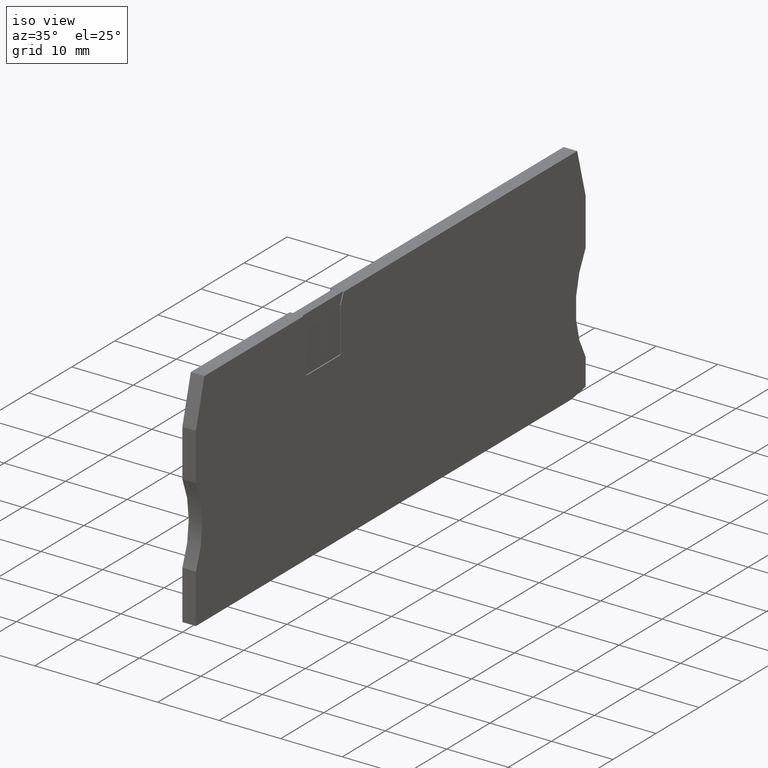
[diagram: clean part render]
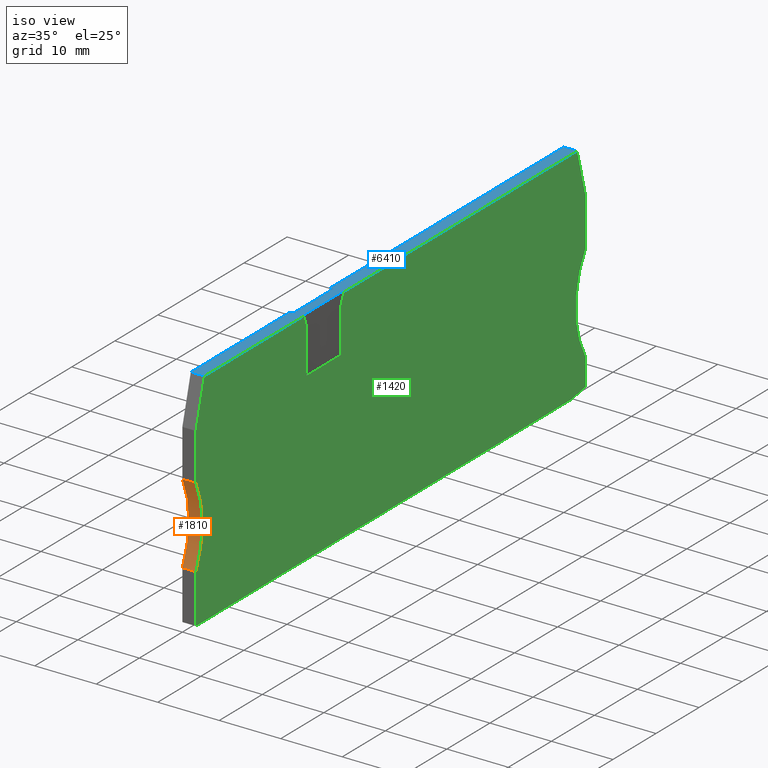
[diagram: same view with three faces highlighted in distinct colors, each labeled with its STEP entity id]
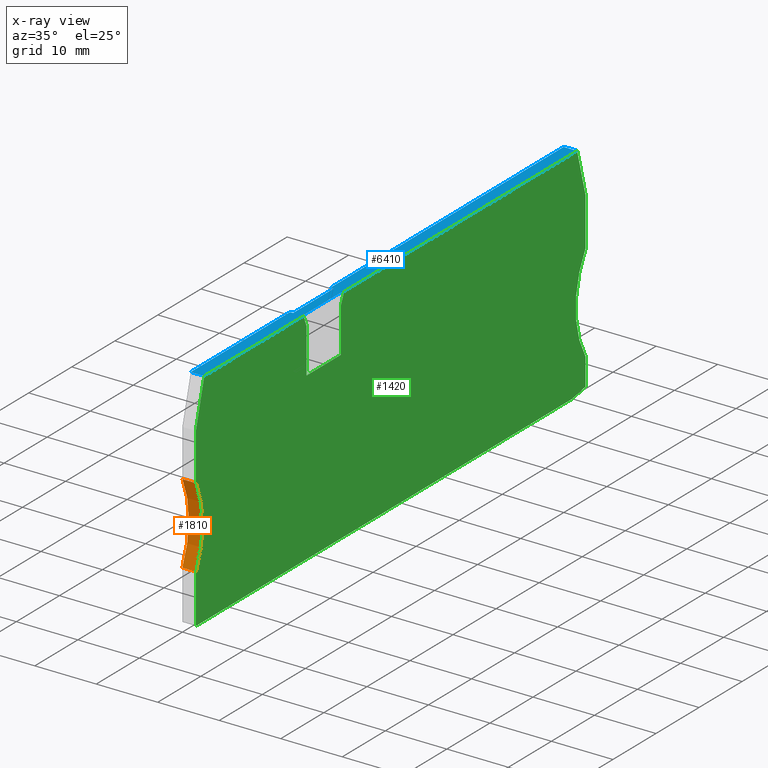
[diagram: x-ray of the same camera — body ghosted, the three highlighted faces saturated]
A machine part, iso view with three faces highlighted in distinct colors.
The next image is the same camera in x-ray (body ghosted, the three faces saturated) — at least one of them is partly hidden behind the body in this view.
Their STEP definitions:

[orange] entity #1810 — the highlighted cylindrical surface (partial cylindrical patch) has radius 15 mm, axis along (1, 0, 0).
#850=CARTESIAN_POINT('',(-32.767832778325,-30.2000000000029,55.87));
#860=VERTEX_POINT('',#850);
#890=CARTESIAN_POINT('',(-46.2863386129204,-23.7000000000014,55.87));
#900=DIRECTION('',(0.,0.,1.));
#910=DIRECTION('',(1.,0.,0.));
#920=AXIS2_PLACEMENT_3D('',#890,#900,#910);
#930=CIRCLE('',#920,15.0000000000002);
#940=CARTESIAN_POINT('',(-32.767832778325,-17.1999999999999,55.87));
#950=VERTEX_POINT('',#940);
#960=EDGE_CURVE('',#860,#950,#930,.T.);
#1500=CARTESIAN_POINT('',(-46.2863386129204,-23.7000000000014,53.4499976
));
#1510=DIRECTION('',(0.,0.,1.));
#1520=DIRECTION('',(1.,0.,0.));
#1530=AXIS2_PLACEMENT_3D('',#1500,#1510,#1520);
#1540=CYLINDRICAL_SURFACE('',#1530,15.0000000000002);
#1550=CARTESIAN_POINT('',(-32.767832778325,-17.1999999999999,53.4499976)
);
#1560=DIRECTION('',(0.,0.,1.));
#1570=VECTOR('',#1560,1.);
#1580=LINE('',#1550,#1570);
#1590=CARTESIAN_POINT('',(-32.767832778325,-17.1999999999999,53.67));
#1600=VERTEX_POINT('',#1590);
#1610=EDGE_CURVE('',#1600,#950,#1580,.T.);
#1620=ORIENTED_EDGE('',*,*,#1610,.F.);
#1630=ORIENTED_EDGE('',*,*,#960,.T.);
#1640=CARTESIAN_POINT('',(-32.767832778325,-30.2000000000029,53.4499976)
);
#1650=DIRECTION('',(0.,0.,1.));
#1660=VECTOR('',#1650,1.);
#1670=LINE('',#1640,#1660);
#1680=CARTESIAN_POINT('',(-32.767832778325,-30.2000000000029,53.67));
#1690=VERTEX_POINT('',#1680);
#1700=EDGE_CURVE('',#1690,#860,#1670,.T.);
#1710=ORIENTED_EDGE('',*,*,#1700,.T.);
#1720=CARTESIAN_POINT('',(-46.2863386129204,-23.7000000000014,53.67));
#1730=DIRECTION('',(0.,0.,1.));
#1740=DIRECTION('',(1.,0.,0.));
#1750=AXIS2_PLACEMENT_3D('',#1720,#1730,#1740);
#1760=CIRCLE('',#1750,15.0000000000002);
#1770=EDGE_CURVE('',#1690,#1600,#1760,.T.);
#1780=ORIENTED_EDGE('',*,*,#1770,.F.);
#1790=EDGE_LOOP('',(#1780,#1710,#1630,#1620));
#1800=FACE_OUTER_BOUND('',#1790,.T.);
#1810=ADVANCED_FACE('',(#1800),#1540,.F.);

[blue] entity #6410 — the highlighted planar face has unit normal (0, 0, 1).
#200=CARTESIAN_POINT('',(1.65066694098248,-2.19999999999897,55.87));
#210=VERTEX_POINT('',#200);
#240=CARTESIAN_POINT('',(31.631009,-2.19999999999897,55.87));
#250=DIRECTION('',(1.,0.,0.));
#260=VECTOR('',#250,1.);
#270=LINE('',#240,#260);
#280=CARTESIAN_POINT('',(55.771972992329,-2.19999999999897,55.87));
#290=VERTEX_POINT('',#280);
#300=EDGE_CURVE('',#210,#290,#270,.T.);
#1100=CARTESIAN_POINT('',(-30.8076385489786,-2.19999999999896,55.87));
#1110=VERTEX_POINT('',#1100);
#1140=CARTESIAN_POINT('',(-7.78633249760621,-2.19999999999896,55.87));
#1150=VERTEX_POINT('',#1140);
#1160=EDGE_CURVE('',#1110,#1150,#270,.T.);
#2880=CARTESIAN_POINT('',(55.771972992329,-2.19999999999897,53.67));
#2890=VERTEX_POINT('',#2880);
#2920=CARTESIAN_POINT('',(31.631009,-2.19999999999897,53.67));
#2930=DIRECTION('',(-1.,0.,0.));
#2940=VECTOR('',#2930,1.);
#2950=LINE('',#2920,#2940);
#2960=CARTESIAN_POINT('',(1.65066694098248,-2.19999999999897,53.67));
#2970=VERTEX_POINT('',#2960);
#2980=EDGE_CURVE('',#2890,#2970,#2950,.T.);
#3270=CARTESIAN_POINT('',(-7.78633249760621,-2.19999999999897,53.67));
#3280=VERTEX_POINT('',#3270);
#3310=CARTESIAN_POINT('',(-30.8076385489786,-2.19999999999896,53.67));
#3320=VERTEX_POINT('',#3310);
#3330=EDGE_CURVE('',#3280,#3320,#2950,.T.);
#4000=CARTESIAN_POINT('',(-7.78633249760621,-2.19999999999897,53.67));
#4010=DIRECTION('',(0.,0.,-1.));
#4020=VECTOR('',#4010,1.);
#4030=LINE('',#4000,#4020);
#4040=CARTESIAN_POINT('',(-7.78633249760616,-2.19999999999908,54.17));
#4050=VERTEX_POINT('',#4040);
#4060=EDGE_CURVE('',#4050,#3280,#4030,.T.);
#4510=CARTESIAN_POINT('',(1.65066694098248,-2.19999999999897,54.17));
#4520=VERTEX_POINT('',#4510);
#4550=CARTESIAN_POINT('',(31.631009,-2.19999999999897,54.17));
#4560=DIRECTION('',(1.,0.,0.));
#4570=VECTOR('',#4560,1.);
#4580=LINE('',#4550,#4570);
#4590=EDGE_CURVE('',#4050,#4520,#4580,.T.);
#4850=CARTESIAN_POINT('',(1.65066694098248,-2.19999999999897,53.67));
#4860=DIRECTION('',(0.,0.,1.));
#4870=VECTOR('',#4860,1.);
#4880=LINE('',#4850,#4870);
#4890=EDGE_CURVE('',#2970,#4520,#4880,.T.);
#5930=CARTESIAN_POINT('',(-32.767832778325,-2.19999999999897,53.67));
#5940=DIRECTION('',(-0.,1.,0.));
#5950=DIRECTION('',(1.,0.,0.));
#5960=AXIS2_PLACEMENT_3D('',#5930,#5940,#5950);
#5970=PLANE('',#5960);
#5980=ORIENTED_EDGE('',*,*,#3330,.T.);
#5990=ORIENTED_EDGE('',*,*,#4060,.T.);
#6000=ORIENTED_EDGE('',*,*,#4590,.F.);
#6010=ORIENTED_EDGE('',*,*,#4890,.T.);
#6020=ORIENTED_EDGE('',*,*,#2980,.T.);
#6030=CARTESIAN_POINT('',(55.771972992329,-2.19999999999897,53.67));
#6040=DIRECTION('',(0.,0.,-1.));
#6050=VECTOR('',#6040,1.);
#6060=LINE('',#6030,#6050);
#6070=EDGE_CURVE('',#290,#2890,#6060,.T.);
#6080=ORIENTED_EDGE('',*,*,#6070,.T.);
#6090=ORIENTED_EDGE('',*,*,#300,.T.);
#6100=CARTESIAN_POINT('',(1.65066694098248,-2.19999999999897,53.67));
#6110=DIRECTION('',(0.,0.,-1.));
#6120=VECTOR('',#6110,1.);
#6130=LINE('',#6100,#6120);
#6140=CARTESIAN_POINT('',(1.65066694098248,-2.19999999999897,55.67));
#6150=VERTEX_POINT('',#6140);
#6160=EDGE_CURVE('',#210,#6150,#6130,.T.);
#6170=ORIENTED_EDGE('',*,*,#6160,.F.);
#6180=CARTESIAN_POINT('',(31.631009,-2.19999999999897,55.67));
#6190=DIRECTION('',(1.,0.,0.));
#6200=VECTOR('',#6190,1.);
#6210=LINE('',#6180,#6200);
#6220=CARTESIAN_POINT('',(-7.78633249760616,-2.19999999999908,55.67));
#6230=VERTEX_POINT('',#6220);
#6240=EDGE_CURVE('',#6230,#6150,#6210,.T.);
#6250=ORIENTED_EDGE('',*,*,#6240,.T.);
#6260=CARTESIAN_POINT('',(-7.78633249760621,-2.19999999999897,53.67));
#6270=DIRECTION('',(0.,0.,1.));
#6280=VECTOR('',#6270,1.);
#6290=LINE('',#6260,#6280);
#6300=EDGE_CURVE('',#6230,#1150,#6290,.T.);
#6310=ORIENTED_EDGE('',*,*,#6300,.F.);
#6320=ORIENTED_EDGE('',*,*,#1160,.T.);
#6330=CARTESIAN_POINT('',(-30.8076385489786,-2.19999999999897,53.67));
#6340=DIRECTION('',(0.,0.,-1.));
#6350=VECTOR('',#6340,1.);
#6360=LINE('',#6330,#6350);
#6370=EDGE_CURVE('',#1110,#3320,#6360,.T.);
#6380=ORIENTED_EDGE('',*,*,#6370,.F.);
#6390=EDGE_LOOP('',(#6380,#6320,#6310,#6250,#6170,#6090,#6080,#6020,
#6010,#6000,#5990,#5980));
#6400=FACE_OUTER_BOUND('',#6390,.T.);
#6410=ADVANCED_FACE('',(#6400),#5970,.T.);

[green] entity #1420 — the highlighted planar face has unit normal (1, 0, 0).
#10=CARTESIAN_POINT('',(-56.6917081414201,-5.44240052364707,55.87));
#20=DIRECTION('',(0.,0.,1.));
#30=DIRECTION('',(1.,0.,0.));
#40=AXIS2_PLACEMENT_3D('',#10,#20,#30);
#50=PLANE('',#40);
#60=CARTESIAN_POINT('',(0.932167221675279,-22.363129,55.87));
#70=DIRECTION('',(0.,1.,0.));
#80=VECTOR('',#70,1.);
#90=LINE('',#60,#80);
#100=CARTESIAN_POINT('',(0.932167221675279,-11.2000000000016,55.87));
#110=VERTEX_POINT('',#100);
#120=CARTESIAN_POINT('',(0.932167221675275,-3.90000000000191,55.87));
#130=VERTEX_POINT('',#120);
#140=EDGE_CURVE('',#110,#130,#90,.T.);
#150=ORIENTED_EDGE('',*,*,#140,.F.);
#160=CARTESIAN_POINT('',(-6.8712168983296,-22.363129,55.87));
#170=DIRECTION('',(0.389303997098191,0.92110933001646,0.));
#180=VECTOR('',#170,1.);
#190=LINE('',#160,#180);
#200=CARTESIAN_POINT('',(1.65066694098248,-2.19999999999897,55.87));
#210=VERTEX_POINT('',#200);
#220=EDGE_CURVE('',#130,#210,#190,.T.);
#230=ORIENTED_EDGE('',*,*,#220,.F.);
#240=CARTESIAN_POINT('',(31.631009,-2.19999999999897,55.87));
#250=DIRECTION('',(1.,0.,0.));
#260=VECTOR('',#250,1.);
#270=LINE('',#240,#260);
#280=CARTESIAN_POINT('',(55.771972992329,-2.19999999999897,55.87));
#290=VERTEX_POINT('',#280);
#300=EDGE_CURVE('',#210,#290,#270,.T.);
#310=ORIENTED_EDGE('',*,*,#300,.F.);
#320=CARTESIAN_POINT('',(61.1746671247789,-22.363129,55.87));
#330=DIRECTION('',(-0.258819045103196,0.965925826288887,0.));
#340=VECTOR('',#330,1.);
#350=LINE('',#320,#340);
#360=CARTESIAN_POINT('',(57.7321672216756,-9.51554445660334,55.87));
#370=VERTEX_POINT('',#360);
#380=EDGE_CURVE('',#370,#290,#350,.T.);
#390=ORIENTED_EDGE('',*,*,#380,.T.);
#400=CARTESIAN_POINT('',(57.7321672216756,-22.363129,55.87));
#410=DIRECTION('',(0.,-1.,0.));
#420=VECTOR('',#410,1.);
#430=LINE('',#400,#420);
#440=CARTESIAN_POINT('',(57.7321672216756,-17.2000000000024,55.87));
#450=VERTEX_POINT('',#440);
#460=EDGE_CURVE('',#370,#450,#430,.T.);
#470=ORIENTED_EDGE('',*,*,#460,.F.);
#480=CARTESIAN_POINT('',(70.4207447621217,-25.2000000000011,55.87));
#490=DIRECTION('',(0.,0.,1.));
#500=DIRECTION('',(1.,0.,0.));
#510=AXIS2_PLACEMENT_3D('',#480,#490,#500);
#520=CIRCLE('',#510,14.9999999999964);
#530=CARTESIAN_POINT('',(57.7321672216756,-33.1999999999997,55.87));
#540=VERTEX_POINT('',#530);
#550=EDGE_CURVE('',#450,#540,#520,.T.);
#560=ORIENTED_EDGE('',*,*,#550,.F.);
#570=CARTESIAN_POINT('',(57.7321672216756,-22.363129,55.87));
#580=DIRECTION('',(0.,1.,0.));
#590=VECTOR('',#580,1.);
#600=LINE('',#570,#590);
#610=CARTESIAN_POINT('',(57.7321672216756,-37.5829787234045,55.87));
#620=VERTEX_POINT('',#610);
#630=EDGE_CURVE('',#620,#540,#600,.T.);
#640=ORIENTED_EDGE('',*,*,#630,.T.);
#650=CARTESIAN_POINT('',(31.631009,-42.5810728509603,55.87));
#660=DIRECTION('',(0.98215519189214,0.188072270787892,0.));
#670=VECTOR('',#660,1.);
#680=LINE('',#650,#670);
#690=CARTESIAN_POINT('',(54.5099449994476,-38.2000000000014,55.87));
#700=VERTEX_POINT('',#690);
#710=EDGE_CURVE('',#700,#620,#680,.T.);
#720=ORIENTED_EDGE('',*,*,#710,.T.);
#730=CARTESIAN_POINT('',(31.631009,-38.2000000000014,55.87));
#740=DIRECTION('',(-1.,0.,0.));
#750=VECTOR('',#740,1.);
#760=LINE('',#730,#750);
#770=CARTESIAN_POINT('',(-32.767832778325,-38.2000000000014,55.87));
#780=VERTEX_POINT('',#770);
#790=EDGE_CURVE('',#700,#780,#760,.T.);
#800=ORIENTED_EDGE('',*,*,#790,.F.);
#810=CARTESIAN_POINT('',(-32.767832778325,-22.363129,55.87));
#820=DIRECTION('',(0.,1.,0.));
#830=VECTOR('',#820,1.);
#840=LINE('',#810,#830);
#850=CARTESIAN_POINT('',(-32.767832778325,-30.2000000000029,55.87));
#860=VERTEX_POINT('',#850);
#870=EDGE_CURVE('',#780,#860,#840,.T.);
#880=ORIENTED_EDGE('',*,*,#870,.F.);
#890=CARTESIAN_POINT('',(-46.2863386129204,-23.7000000000014,55.87));
#900=DIRECTION('',(0.,0.,1.));
#910=DIRECTION('',(1.,0.,0.));
#920=AXIS2_PLACEMENT_3D('',#890,#900,#910);
#930=CIRCLE('',#920,15.0000000000002);
#940=CARTESIAN_POINT('',(-32.767832778325,-17.1999999999999,55.87));
#950=VERTEX_POINT('',#940);
#960=EDGE_CURVE('',#860,#950,#930,.T.);
#970=ORIENTED_EDGE('',*,*,#960,.F.);
#980=CARTESIAN_POINT('',(-32.767832778325,-22.363129,55.87));
#990=DIRECTION('',(0.,1.,0.));
#1000=VECTOR('',#990,1.);
#1010=LINE('',#980,#1000);
#1020=CARTESIAN_POINT('',(-32.767832778325,-9.51554445660951,55.87));
#1030=VERTEX_POINT('',#1020);
#1040=EDGE_CURVE('',#950,#1030,#1010,.T.);
#1050=ORIENTED_EDGE('',*,*,#1040,.F.);
#1060=CARTESIAN_POINT('',(-36.2103326814236,-22.363129,55.87));
#1070=DIRECTION('',(-0.258819045102977,-0.965925826288946,0.));
#1080=VECTOR('',#1070,1.);
#1090=LINE('',#1060,#1080);
#1100=CARTESIAN_POINT('',(-30.8076385489786,-2.19999999999896,55.87));
#1110=VERTEX_POINT('',#1100);
#1120=EDGE_CURVE('',#1110,#1030,#1090,.T.);
#1130=ORIENTED_EDGE('',*,*,#1120,.T.);
#1140=CARTESIAN_POINT('',(-7.78633249760621,-2.19999999999896,55.87));
#1150=VERTEX_POINT('',#1140);
#1160=EDGE_CURVE('',#1110,#1150,#270,.T.);
#1170=ORIENTED_EDGE('',*,*,#1160,.F.);
#1180=CARTESIAN_POINT('',(0.735551341396391,-22.363129,55.87));
#1190=DIRECTION('',(0.389303997086196,-0.92110933002153,0.));
#1200=VECTOR('',#1190,1.);
#1210=LINE('',#1180,#1200);
#1220=CARTESIAN_POINT('',(-7.0678327783245,-3.90000000000332,55.87));
#1230=VERTEX_POINT('',#1220);
#1240=EDGE_CURVE('',#1150,#1230,#1210,.T.);
#1250=ORIENTED_EDGE('',*,*,#1240,.F.);
#1260=CARTESIAN_POINT('',(-7.0678327783245,-22.363129,55.87));
#1270=DIRECTION('',(0.,-1.,0.));
#1280=VECTOR('',#1270,1.);
#1290=LINE('',#1260,#1280);
#1300=CARTESIAN_POINT('',(-7.0678327783245,-11.2000000000016,55.87));
#1310=VERTEX_POINT('',#1300);
#1320=EDGE_CURVE('',#1230,#1310,#1290,.T.);
#1330=ORIENTED_EDGE('',*,*,#1320,.F.);
#1340=CARTESIAN_POINT('',(31.631009,-11.2000000000016,55.87));
#1350=DIRECTION('',(1.,0.,0.));
#1360=VECTOR('',#1350,1.);
#1370=LINE('',#1340,#1360);
#1380=EDGE_CURVE('',#1310,#110,#1370,.T.);
#1390=ORIENTED_EDGE('',*,*,#1380,.F.);
#1400=EDGE_LOOP('',(#1390,#1330,#1250,#1170,#1130,#1050,#970,#880,#800,
#720,#640,#560,#470,#390,#310,#230,#150));
#1410=FACE_OUTER_BOUND('',#1400,.T.);
#1420=ADVANCED_FACE('',(#1410),#50,.T.);